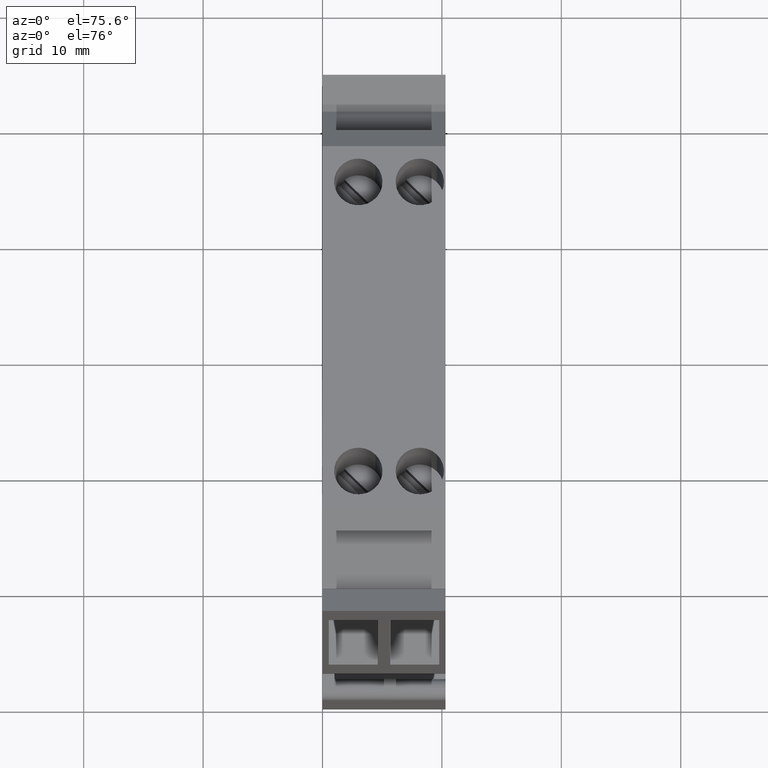
[diagram: clean part render]
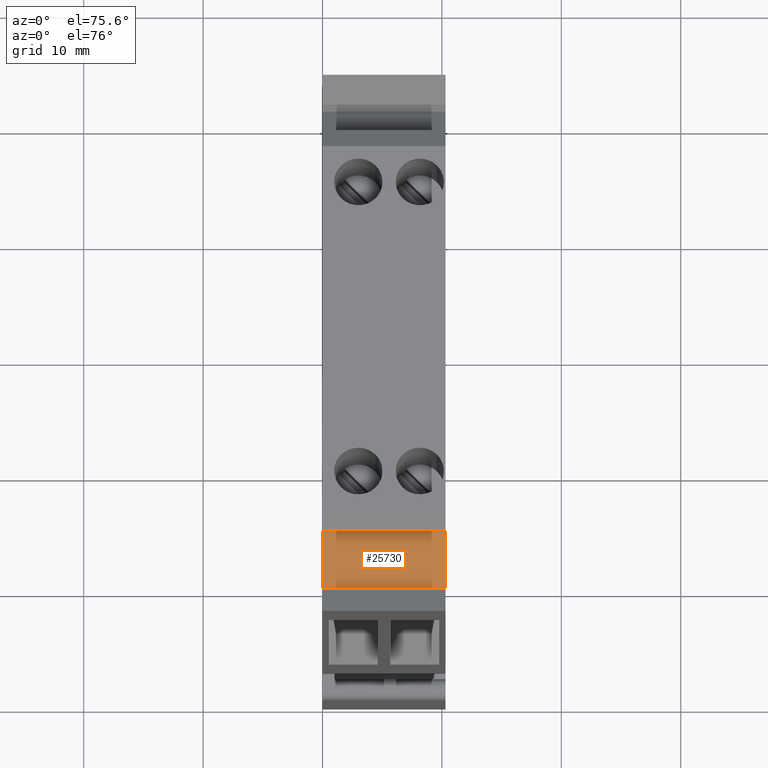
[diagram: same view with one face highlighted and labeled with its STEP entity id]
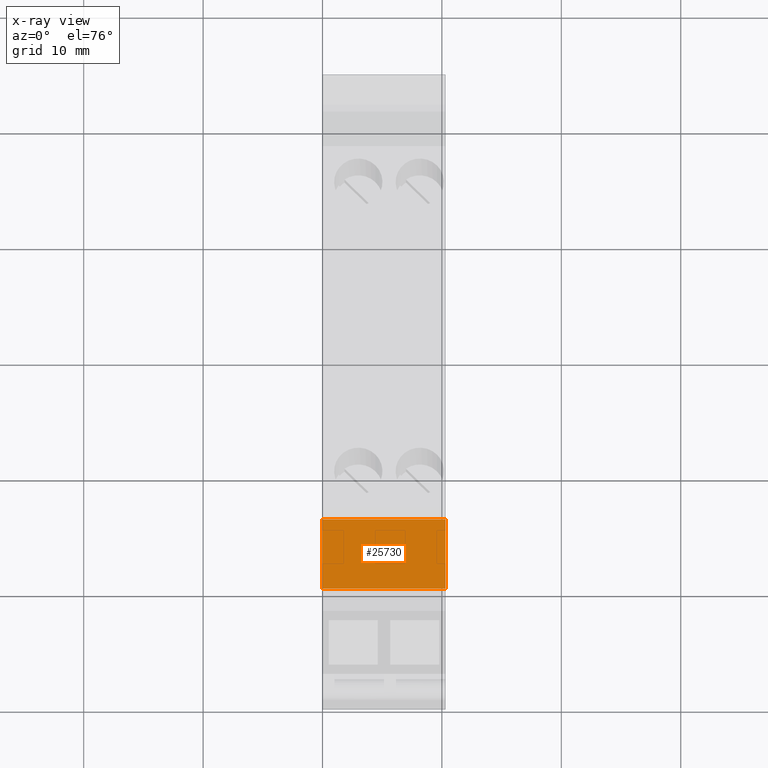
[diagram: x-ray of the same camera — body ghosted, the highlighted face saturated]
A machine part, auxiliary view. The second image highlights one B-rep face of the part: STEP entity #25730.
The next image is the same camera in x-ray: the body ghosted, the highlighted face saturated — about 0% of this face is hidden behind the body in this view.
In plain terms, the highlighted planar face has unit normal (0, 0.6157, -0.788).
Its self-contained STEP definition (entity closure, byte-faithful):
#440=CARTESIAN_POINT('',(-42.3061186534883,34.9712897837833,10.3));
#450=VERTEX_POINT('',#440);
#480=CARTESIAN_POINT('',(-56.8069065338077,23.6420326398668,10.3));
#490=DIRECTION('',(-0.788010753606717,-0.615661475325664,0.));
#500=VECTOR('',#490,1.);
#510=LINE('',#480,#500);
#520=CARTESIAN_POINT('',(-37.3219506369257,38.8653486152182,10.3));
#530=VERTEX_POINT('',#520);
#540=EDGE_CURVE('',#530,#450,#510,.T.);
#10920=CARTESIAN_POINT('',(-37.3219506369257,38.8653486152182,
-7.105427357601E-15));
#10930=VERTEX_POINT('',#10920);
#10960=CARTESIAN_POINT('',(-56.8069065338077,23.6420326398668,
3.5527136788005E-15));
#10970=DIRECTION('',(-0.788010753606717,-0.615661475325664,0.));
#10980=VECTOR('',#10970,1.);
#10990=LINE('',#10960,#10980);
#11000=CARTESIAN_POINT('',(-42.3061186534883,34.9712897837833,
-7.105427357601E-15));
#11010=VERTEX_POINT('',#11000);
#11020=EDGE_CURVE('',#10930,#11010,#10990,.T.);
#25410=CARTESIAN_POINT('',(-42.3061186534883,34.9712897837833,5.15));
#25420=DIRECTION('',(0.,0.,-1.));
#25430=VECTOR('',#25420,1.);
#25440=LINE('',#25410,#25430);
#25450=EDGE_CURVE('',#450,#11010,#25440,.T.);
#25570=CARTESIAN_POINT('',(-42.3061186534883,34.9712897837833,5.15));
#25580=DIRECTION('',(0.615661475325664,-0.788010753606717,0.));
#25590=DIRECTION('',(-0.788010753606717,-0.615661475325664,0.));
#25600=AXIS2_PLACEMENT_3D('',#25570,#25580,#25590);
#25610=PLANE('',#25600);
#25620=ORIENTED_EDGE('',*,*,#540,.F.);
#25630=ORIENTED_EDGE('',*,*,#25450,.F.);
#25640=ORIENTED_EDGE('',*,*,#11020,.T.);
#25650=CARTESIAN_POINT('',(-37.3219506369257,38.8653486152182,5.15));
#25660=DIRECTION('',(0.,0.,-1.));
#25670=VECTOR('',#25660,1.);
#25680=LINE('',#25650,#25670);
#25690=EDGE_CURVE('',#530,#10930,#25680,.T.);
#25700=ORIENTED_EDGE('',*,*,#25690,.T.);
#25710=EDGE_LOOP('',(#25700,#25640,#25630,#25620));
#25720=FACE_OUTER_BOUND('',#25710,.T.);
#25730=ADVANCED_FACE('',(#25720),#25610,.F.);